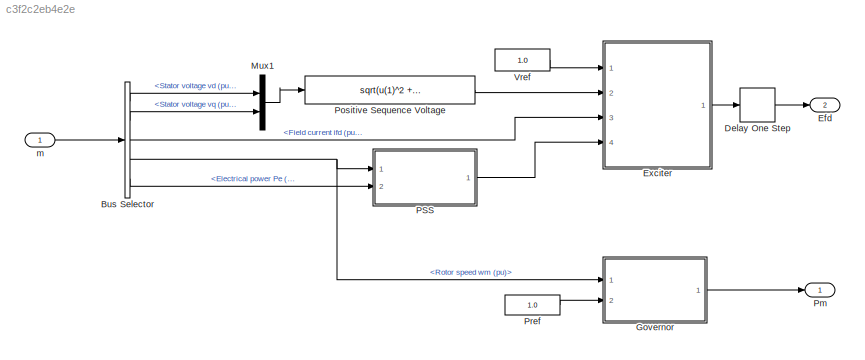
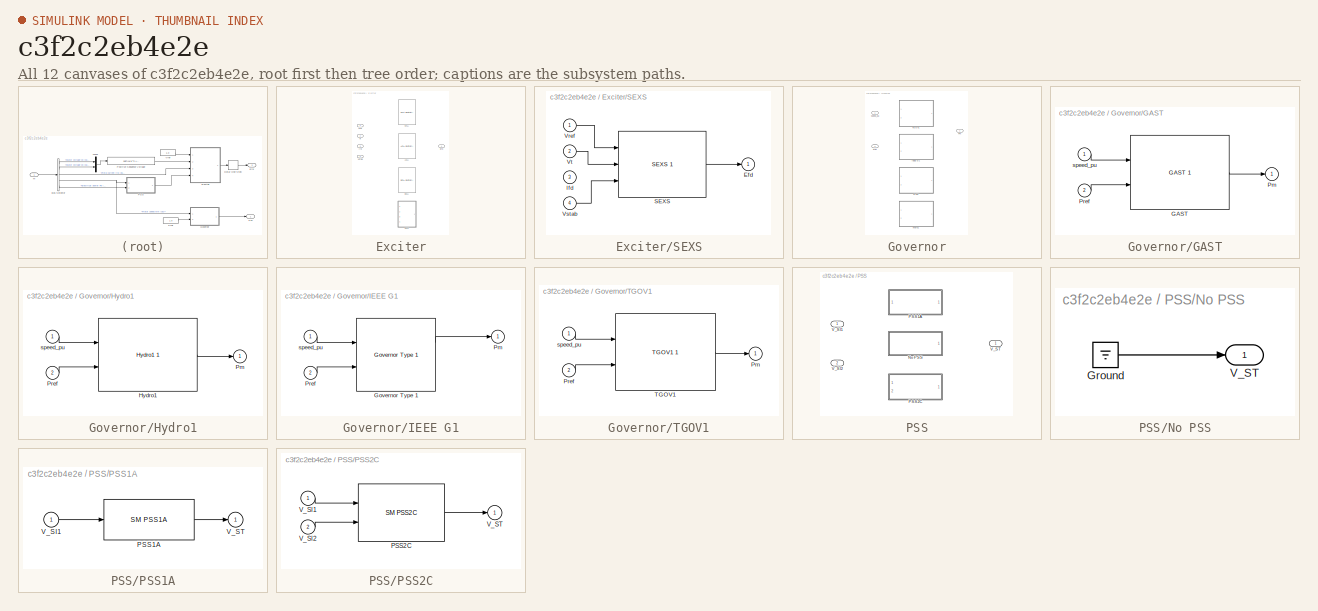
[diagram: thumbnail index - all 12 canvases of the model, root first then tree order]
MODEL slx_c3f2c2eb4e2e
KIND model
CONFIG AbsTol = auto
CONFIG EnableMultiTasking = off
CONFIG FixedStep = auto
CONFIG MaxStep = auto
CONFIG MinStep = auto
CONFIG RelTol = 1e-3
CONFIG SampleTimeConstraint = Unconstrained
CONFIG SolverName = VariableStepAuto
CONFIG StartTime = 0.0
CONFIG StopTime = 10.0
BLOCK [BusSelector] Bus Selector
  OutputSignals = dq0 components.Stator voltage  vd (pu),dq0 components.Stator voltage  vq (pu),dq0 components.Field current  ifd (pu),Mechanical.Rotor speed  wm  (pu),Mechanical.Electrical power  Pe (pu)
  Ports = [1, 5]
BLOCK [Delay] Delay One Step
  DelayLength = 1
  InputPortMap = u0
  Ports = [1, 1]
BLOCK [Outport] Efd
  Port = 2
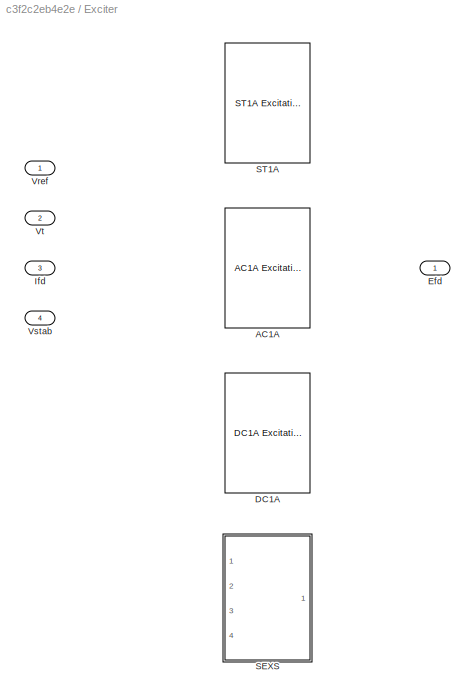
BLOCK [SubSystem] Exciter
  LabelModeActiveChoice = sexs
  Ports = [4, 1]
  Variant = on
  VariantControlMode = label
BLOCK [Reference] Exciter/AC1A  REF=spsAC1AExcitationSystemLib/AC1A
Excitation System
  Ports = [4, 1]
  SourceBlock = spsAC1AExcitationSystemLib/AC1A\nExcitation System
  SourceType = AC1A Excitation System
BLOCK [Reference] Exciter/DC1A  REF=spsDC1AExcitationSystemLib/DC1A
Excitation System
  Ports = [3, 1]
  SourceBlock = spsDC1AExcitationSystemLib/DC1A\nExcitation System
  SourceType = DC1A Excitation System
BLOCK [Outport] Exciter/Efd
BLOCK [Inport] Exciter/Ifd
  Port = 3
BLOCK [SubSystem] Exciter/SEXS
  Ports = [4, 1]
  VariantControl = sexs
BLOCK [Outport] Exciter/SEXS/Efd
BLOCK [Inport] Exciter/SEXS/Ifd
  Port = 3
BLOCK [Reference] Exciter/SEXS/SEXS  REF=customLib/SEXS 1
  Ports = [3, 1]
  SourceBlock = customLib/SEXS 1
  SourceProductName = Custom Library
BLOCK [Inport] Exciter/SEXS/Vref
BLOCK [Inport] Exciter/SEXS/Vstab
  Port = 4
BLOCK [Inport] Exciter/SEXS/Vt
  Port = 2
BLOCK [Reference] Exciter/ST1A  REF=spsST1AExcitationSystemLib/ST1A
Excitation System
  Ports = [4, 1]
  SourceBlock = spsST1AExcitationSystemLib/ST1A\nExcitation System
  SourceType = ST1A Excitation System
BLOCK [Inport] Exciter/Vref
BLOCK [Inport] Exciter/Vstab
  Port = 4
BLOCK [Inport] Exciter/Vt
  Port = 2
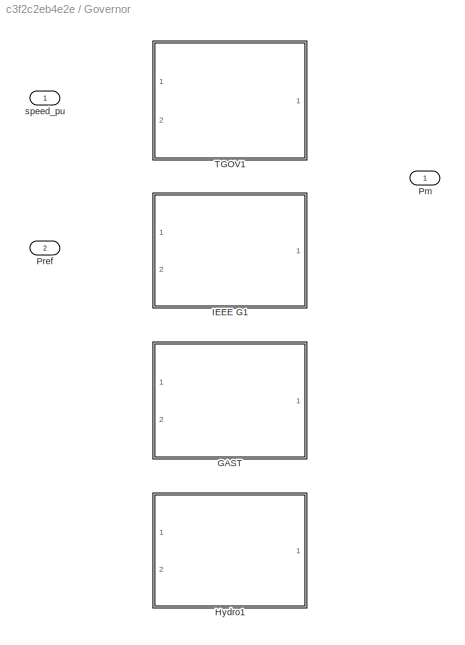
BLOCK [SubSystem] Governor
  LabelModeActiveChoice = tgov1
  Ports = [2, 1]
  Variant = on
  VariantControlMode = label
BLOCK [SubSystem] Governor/GAST
  Ports = [2, 1]
  VariantControl = gast
BLOCK [Reference] Governor/GAST/GAST  REF=customLib/GAST 1
  Ports = [2, 1]
  SourceBlock = customLib/GAST 1
  SourceProductName = Custom Library
BLOCK [Outport] Governor/GAST/Pm
BLOCK [Inport] Governor/GAST/Pref
  Port = 2
BLOCK [Inport] Governor/GAST/speed_pu
BLOCK [SubSystem] Governor/Hydro1
  Ports = [2, 1]
  VariantControl = hydro1
BLOCK [Reference] Governor/Hydro1/Hydro1  REF=customLib/Hydro1 1
  Ports = [2, 1]
  SourceBlock = customLib/Hydro1 1
  SourceProductName = Custom Library
BLOCK [Outport] Governor/Hydro1/Pm
BLOCK [Inport] Governor/Hydro1/Pref
  Port = 2
BLOCK [Inport] Governor/Hydro1/speed_pu
BLOCK [SubSystem] Governor/IEEE G1
  Ports = [2, 1]
  VariantControl = ieeeg1
BLOCK [Reference] Governor/IEEE G1/Governor Type 1  REF=eeGovernorG1/Governor Type 1
  Ports = [2, 2]
  SourceBlock = eeGovernorG1/Governor Type 1
  SourceType = Governor Type 1
BLOCK [Outport] Governor/IEEE G1/Pm
BLOCK [Inport] Governor/IEEE G1/Pref
  Port = 2
BLOCK [Inport] Governor/IEEE G1/speed_pu
BLOCK [Outport] Governor/Pm
BLOCK [Inport] Governor/Pref
  Port = 2
BLOCK [SubSystem] Governor/TGOV1
  Ports = [2, 1]
  VariantControl = tgov1
BLOCK [Outport] Governor/TGOV1/Pm
BLOCK [Inport] Governor/TGOV1/Pref
  Port = 2
BLOCK [Reference] Governor/TGOV1/TGOV1  REF=customLib/TGOV1 1
  Ports = [2, 1]
  SourceBlock = customLib/TGOV1 1
  SourceProductName = Custom Library
  SourceType = Governor TGOV1
BLOCK [Inport] Governor/TGOV1/speed_pu
BLOCK [Inport] Governor/speed_pu
BLOCK [Mux] Mux1
  DisplayOption = bar
  Inputs = 2
  Ports = [2, 1]
BLOCK [SubSystem] PSS
  LabelModeActiveChoice = none
  Ports = [2, 1]
  Variant = on
  VariantControlMode = label
BLOCK [SubSystem] PSS/No PSS
  Ports = [0, 1]
  VariantControl = none
BLOCK [Ground] PSS/No PSS/Ground
BLOCK [Outport] PSS/No PSS/V_ST
BLOCK [SubSystem] PSS/PSS1A
  Ports = [1, 1]
  VariantControl = pss1a
BLOCK [Reference] PSS/PSS1A/PSS1A  REF=eeSmPSS1A/SM PSS1A
  Ports = [1, 1]
  SourceBlock = eeSmPSS1A/SM PSS1A
  SourceType = SM PSS1A
BLOCK [Inport] PSS/PSS1A/V_SI1
BLOCK [Outport] PSS/PSS1A/V_ST
BLOCK [SubSystem] PSS/PSS2C
  Ports = [2, 1]
  VariantControl = pss2c
BLOCK [Reference] PSS/PSS2C/PSS2C  REF=eeSmPSS2C/SM PSS2C
  Ports = [2, 1]
  SourceBlock = eeSmPSS2C/SM PSS2C
  SourceType = SM PSS2C
BLOCK [Inport] PSS/PSS2C/V_SI1
BLOCK [Inport] PSS/PSS2C/V_SI2
  Port = 2
BLOCK [Outport] PSS/PSS2C/V_ST
BLOCK [Inport] PSS/V_SI1
BLOCK [Inport] PSS/V_SI2
  Port = 2
BLOCK [Outport] PSS/V_ST
BLOCK [Outport] Pm
BLOCK [Fcn] Positive Sequence Voltage
  Expr = sqrt(u(1)^2 + u(2)^2)
BLOCK [Constant] Pref
  Value = 1.0
BLOCK [Constant] Vref
  Value = 1.0
BLOCK [Inport] m
  NameLocation = top
LINE Bus Selector:1 -> Mux1:1
LINE Bus Selector:2 -> Mux1:2
LINE Bus Selector:3 -> Exciter:3
NET Bus Selector:4 -> Governor:1, PSS:1
LINE Bus Selector:5 -> PSS:2
LINE Delay One Step:1 -> Efd:1
LINE Exciter/SEXS/SEXS:1 -> Exciter/SEXS/Efd:1
LINE Exciter/SEXS/Vref:1 -> Exciter/SEXS/SEXS:1
LINE Exciter/SEXS/Vstab:1 -> Exciter/SEXS/SEXS:3
LINE Exciter/SEXS/Vt:1 -> Exciter/SEXS/SEXS:2
LINE Exciter:1 -> Delay One Step:1
LINE Governor/GAST/GAST:1 -> Governor/GAST/Pm:1
LINE Governor/GAST/Pref:1 -> Governor/GAST/GAST:2
LINE Governor/GAST/speed_pu:1 -> Governor/GAST/GAST:1
LINE Governor/Hydro1/Hydro1:1 -> Governor/Hydro1/Pm:1
LINE Governor/Hydro1/Pref:1 -> Governor/Hydro1/Hydro1:2
LINE Governor/Hydro1/speed_pu:1 -> Governor/Hydro1/Hydro1:1
LINE Governor/IEEE G1/Governor Type 1:1 -> Governor/IEEE G1/Pm:1
LINE Governor/IEEE G1/Pref:1 -> Governor/IEEE G1/Governor Type 1:2
LINE Governor/IEEE G1/speed_pu:1 -> Governor/IEEE G1/Governor Type 1:1
LINE Governor/TGOV1/Pref:1 -> Governor/TGOV1/TGOV1:2
LINE Governor/TGOV1/TGOV1:1 -> Governor/TGOV1/Pm:1
LINE Governor/TGOV1/speed_pu:1 -> Governor/TGOV1/TGOV1:1
LINE Governor:1 -> Pm:1
LINE Mux1:1 -> Positive Sequence Voltage:1
LINE PSS/No PSS/Ground:1 -> PSS/No PSS/V_ST:1
LINE PSS/PSS1A/PSS1A:1 -> PSS/PSS1A/V_ST:1
LINE PSS/PSS1A/V_SI1:1 -> PSS/PSS1A/PSS1A:1
LINE PSS/PSS2C/PSS2C:1 -> PSS/PSS2C/V_ST:1
LINE PSS/PSS2C/V_SI1:1 -> PSS/PSS2C/PSS2C:1
LINE PSS/PSS2C/V_SI2:1 -> PSS/PSS2C/PSS2C:2
LINE PSS:1 -> Exciter:4
LINE Positive Sequence Voltage:1 -> Exciter:2
LINE Pref:1 -> Governor:2
LINE Vref:1 -> Exciter:1
LINE m:1 -> Bus Selector:1
note: NET lines group one-source signal fan-out (src -> all destinations, sorted); 1:1 wires keep LINE
